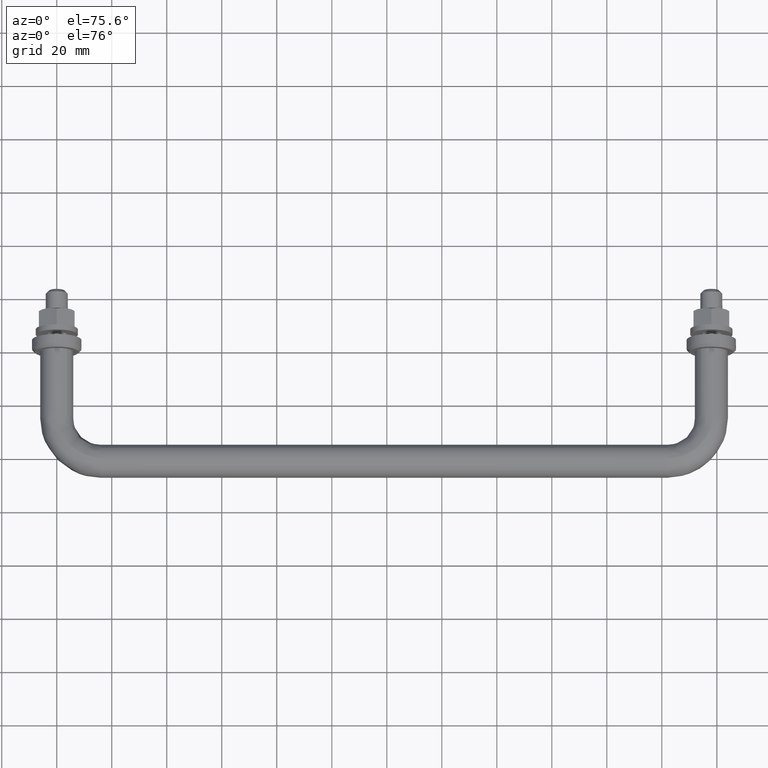
[diagram: clean part render]
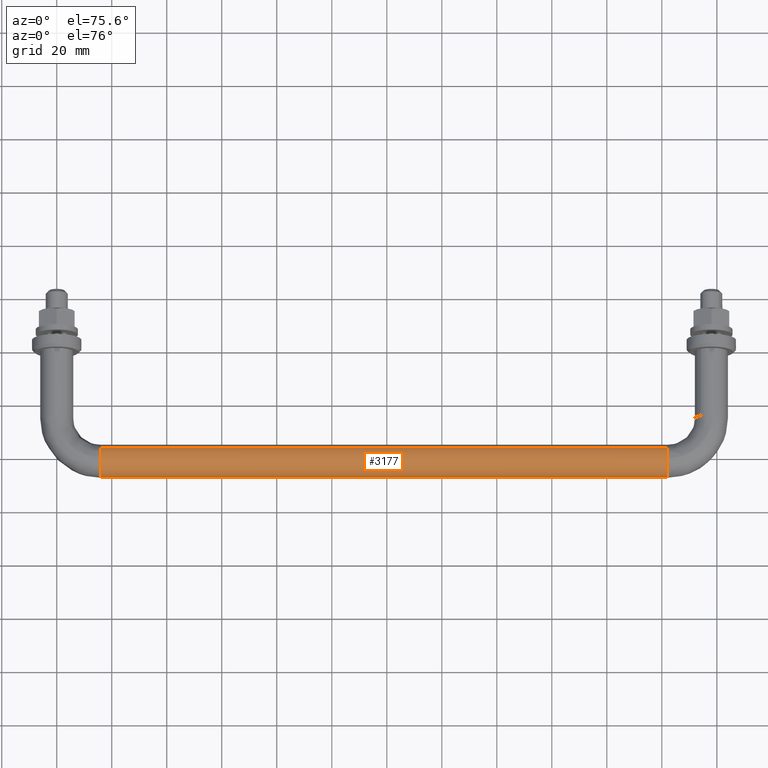
[diagram: same view with one face highlighted and labeled with its STEP entity id]
A machine part, auxiliary view. The second image highlights one B-rep face of the part: STEP entity #3177.
In plain terms, the highlighted face is a freeform B-spline surface patch.
Its self-contained STEP definition (entity closure, byte-faithful):
#2956=CARTESIAN_POINT('',(222.0,-48.467995312664243,-4.004624562428996));
#2957=VERTEX_POINT('',#2956);
#2973=CARTESIAN_POINT('',(16.0,-48.467995306421393,-4.004624569394231));
#2974=VERTEX_POINT('',#2973);
#2975=CARTESIAN_POINT('',(16.0,-48.467995306421393,-4.004624569394231));
#2976=CARTESIAN_POINT('',(222.0,-48.467995312664243,-4.004624562428996));
#2977=QUASI_UNIFORM_CURVE('',1,(#2975,#2976),.UNSPECIFIED.,.F.,.U.);
#2978=EDGE_CURVE('',#2974,#2957,#2977,.T.);
#3012=CARTESIAN_POINT('',(16.0,-40.024279710704917,4.493734324733435));
#3013=VERTEX_POINT('',#3012);
#3027=CARTESIAN_POINT('',(222.0,-40.024279710704903,4.493734324733426));
#3028=VERTEX_POINT('',#3027);
#3029=CARTESIAN_POINT('',(16.0,-40.024279710704917,4.493734324733435));
#3030=CARTESIAN_POINT('',(222.0,-40.024279710704903,4.493734324733426));
#3031=QUASI_UNIFORM_CURVE('',1,(#3029,#3030),.UNSPECIFIED.,.F.,.U.);
#3032=EDGE_CURVE('',#3013,#3028,#3031,.T.);
#3065=CARTESIAN_POINT('',(10.849999986672650,-40.024279710705578,4.493734324734011));
#3066=CARTESIAN_POINT('',(10.849999986672650,-44.518014035439599,8.469454614028436));
#3067=CARTESIAN_POINT('',(10.849999986672650,-48.493734324734007,3.975720289294424));
#3068=CARTESIAN_POINT('',(10.849999986672650,-52.034080247159984,-0.025912832602382));
#3069=CARTESIAN_POINT('',(10.849999986672648,-48.467994806516181,-4.004625127142923));
#3070=CARTESIAN_POINT('',(227.278750001929810,-40.024279710705549,4.493734324734011));
#3071=CARTESIAN_POINT('',(227.278750001929780,-44.518014035439563,8.469454614028436));
#3072=CARTESIAN_POINT('',(227.278750001929810,-48.493734324733992,3.975720289294424));
#3073=CARTESIAN_POINT('',(227.278750001929690,-52.034080247159956,-0.025912832602382));
#3074=CARTESIAN_POINT('',(227.278750001929780,-48.467994806516145,-4.004625127142923));
#3082=(BOUNDED_SURFACE()B_SPLINE_SURFACE(2,1,((#3065,#3070),(#3066,#3071),(#3067,#3072),(#3068,#3073),(#3069,#3074)),.UNSPECIFIED.,.F.,.F.,.U.)B_SPLINE_SURFACE_WITH_KNOTS((3,2,3),(2,2),(0.0,9.941125496954280,19.086960954152222),(0.0,216.428750015257210),.UNSPECIFIED.)GEOMETRIC_REPRESENTATION_ITEM()RATIONAL_B_SPLINE_SURFACE(((1.0,1.0),(0.707106781186548,0.707106781186548),(1.0,1.0),(0.730538238691624,0.730538238691624),(0.956886118190660,0.956886118190660)))REPRESENTATION_ITEM('')SURFACE());
#3083=CARTESIAN_POINT('',(222.0,-49.999999999999993,0.0));
#3084=VERTEX_POINT('',#3083);
#3085=CARTESIAN_POINT('',(222.0,-48.467995312664250,-4.004624562428996));
#3086=CARTESIAN_POINT('',(222.000000000000030,-50.0,-2.295352845203612));
#3087=CARTESIAN_POINT('',(222.0,-49.999999999999993,0.0));
#3095=(BOUNDED_CURVE()B_SPLINE_CURVE(2,(#3085,#3086,#3087),.UNSPECIFIED.,.F.,.U.)B_SPLINE_CURVE_WITH_KNOTS((3,3),(0.383245997856177,0.500000000000000),.UNSPECIFIED.)CURVE()GEOMETRIC_REPRESENTATION_ITEM()RATIONAL_B_SPLINE_CURVE((0.854190693251956,0.863214178010972,1.0))REPRESENTATION_ITEM(''));
#3096=EDGE_CURVE('',#2957,#3084,#3095,.T.);
#3097=ORIENTED_EDGE('',*,*,#3096,.T.);
#3098=CARTESIAN_POINT('',(221.999999978992090,-44.418400041564851,5.985394005846084));
#3099=VERTEX_POINT('',#3098);
#3100=CARTESIAN_POINT('',(222.0,-49.999999999999993,0.0));
#3101=CARTESIAN_POINT('',(221.999999999999940,-49.999999999999986,5.595220086321878));
#3102=CARTESIAN_POINT('',(221.999999978992070,-44.418400041564858,5.985394005846084));
#3110=(BOUNDED_CURVE()B_SPLINE_CURVE(2,(#3100,#3101,#3102),.UNSPECIFIED.,.F.,.U.)B_SPLINE_CURVE_WITH_KNOTS((3,3),(0.500000000000000,0.737833655956037),.UNSPECIFIED.)CURVE()GEOMETRIC_REPRESENTATION_ITEM()RATIONAL_B_SPLINE_CURVE((1.0,0.721360539859461,0.972879811709648))REPRESENTATION_ITEM(''));
#3111=EDGE_CURVE('',#3084,#3099,#3110,.T.);
#3112=ORIENTED_EDGE('',*,*,#3111,.T.);
#3113=CARTESIAN_POINT('',(221.999999978992150,-44.418400041564858,5.985394005846084));
#3114=CARTESIAN_POINT('',(222.000000000000060,-44.209455229309008,6.0));
#3115=CARTESIAN_POINT('',(222.0,-44.0,6.0));
#3116=CARTESIAN_POINT('',(221.999999999999970,-41.726803347827115,6.0));
#3117=CARTESIAN_POINT('',(221.999999999999940,-40.024279710704910,4.493734324733426));
#3125=(BOUNDED_CURVE()B_SPLINE_CURVE(2,(#3113,#3114,#3115,#3116,#3117),.UNSPECIFIED.,.F.,.U.)B_SPLINE_CURVE_WITH_KNOTS((3,2,3),(0.737833655956036,0.750000000000000,0.865779888059615),.UNSPECIFIED.)CURVE()GEOMETRIC_REPRESENTATION_ITEM()RATIONAL_B_SPLINE_CURVE((0.972879811709646,0.985746241327086,1.0,0.864355423649432,0.854350158224966))REPRESENTATION_ITEM(''));
#3126=EDGE_CURVE('',#3099,#3028,#3125,.T.);
#3127=ORIENTED_EDGE('',*,*,#3126,.T.);
#3128=ORIENTED_EDGE('',*,*,#3032,.F.);
#3129=CARTESIAN_POINT('',(15.999999999095181,-44.075396245465733,5.999526265145413));
#3130=VERTEX_POINT('',#3129);
#3131=CARTESIAN_POINT('',(15.999999999095179,-44.075396245465726,5.999526265145413));
#3132=CARTESIAN_POINT('',(16.000000000000004,-44.037699614117692,6.0));
#3133=CARTESIAN_POINT('',(16.0,-44.0,6.0));
#3134=CARTESIAN_POINT('',(16.000000000000004,-41.726803347827143,6.000000000000001));
#3135=CARTESIAN_POINT('',(16.000000000000007,-40.024279710704924,4.493734324733436));
#3143=(BOUNDED_CURVE()B_SPLINE_CURVE(2,(#3131,#3132,#3133,#3134,#3135),.UNSPECIFIED.,.F.,.U.)B_SPLINE_CURVE_WITH_KNOTS((3,2,3),(0.747784295560257,0.750000000000000,0.865779888059615),.UNSPECIFIED.)CURVE()GEOMETRIC_REPRESENTATION_ITEM()RATIONAL_B_SPLINE_CURVE((0.994854294812045,0.997404140778817,1.0,0.864355423649433,0.854350158224966))REPRESENTATION_ITEM(''));
#3144=EDGE_CURVE('',#3130,#3013,#3143,.T.);
#3145=ORIENTED_EDGE('',*,*,#3144,.F.);
#3146=CARTESIAN_POINT('',(16.0,-49.999999999999993,0.0));
#3147=VERTEX_POINT('',#3146);
#3148=CARTESIAN_POINT('',(16.0,-49.999999999999993,0.0));
#3149=CARTESIAN_POINT('',(16.000000000000004,-49.999999999999979,5.925071567264703));
#3150=CARTESIAN_POINT('',(15.999999999095184,-44.075396245465733,5.999526265145413));
#3158=(BOUNDED_CURVE()B_SPLINE_CURVE(2,(#3148,#3149,#3150),.UNSPECIFIED.,.F.,.U.)B_SPLINE_CURVE_WITH_KNOTS((3,3),(0.500000000000000,0.747784295560256),.UNSPECIFIED.)CURVE()GEOMETRIC_REPRESENTATION_ITEM()RATIONAL_B_SPLINE_CURVE((1.0,0.709702640407731,0.994854294812044))REPRESENTATION_ITEM(''));
#3159=EDGE_CURVE('',#3147,#3130,#3158,.T.);
#3160=ORIENTED_EDGE('',*,*,#3159,.F.);
#3161=CARTESIAN_POINT('',(16.000000000000004,-48.467995306421386,-4.004624569394231));
#3162=CARTESIAN_POINT('',(16.0,-49.999999999999993,-2.295352855926012));
#3163=CARTESIAN_POINT('',(16.0,-49.999999999999993,0.0));
#3171=(BOUNDED_CURVE()B_SPLINE_CURVE(2,(#3161,#3162,#3163),.UNSPECIFIED.,.F.,.U.)B_SPLINE_CURVE_WITH_KNOTS((3,3),(0.383245997385381,0.500000000000000),.UNSPECIFIED.)CURVE()GEOMETRIC_REPRESENTATION_ITEM()RATIONAL_B_SPLINE_CURVE((0.854190693179184,0.863214177459400,1.0))REPRESENTATION_ITEM(''));
#3172=EDGE_CURVE('',#2974,#3147,#3171,.T.);
#3173=ORIENTED_EDGE('',*,*,#3172,.F.);
#3174=ORIENTED_EDGE('',*,*,#2978,.T.);
#3175=EDGE_LOOP('',(#3097,#3112,#3127,#3128,#3145,#3160,#3173,#3174));
#3176=FACE_OUTER_BOUND('',#3175,.T.);
#3177=ADVANCED_FACE('',(#3176),#3082,.T.);